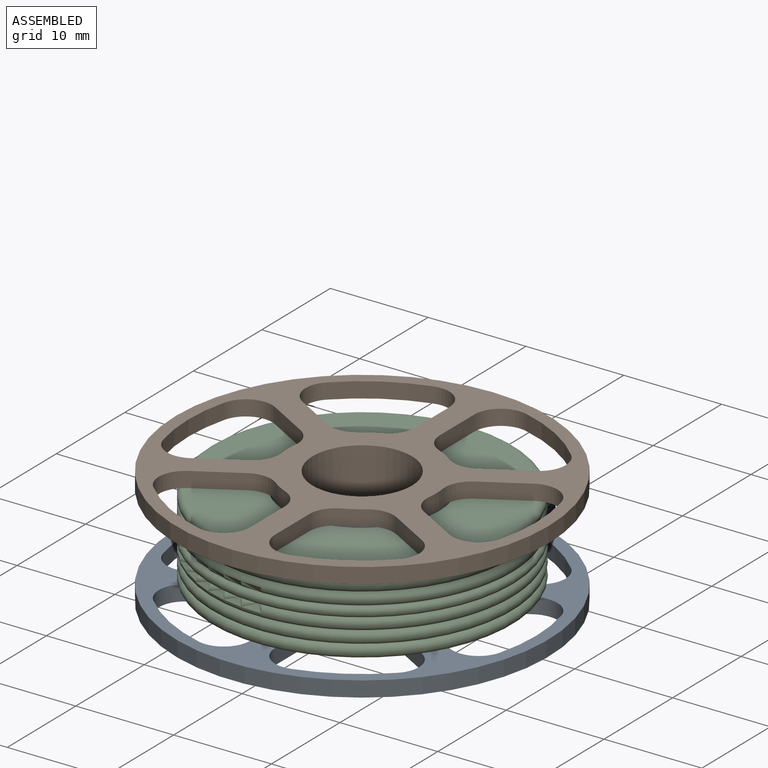
[diagram: assembled view]
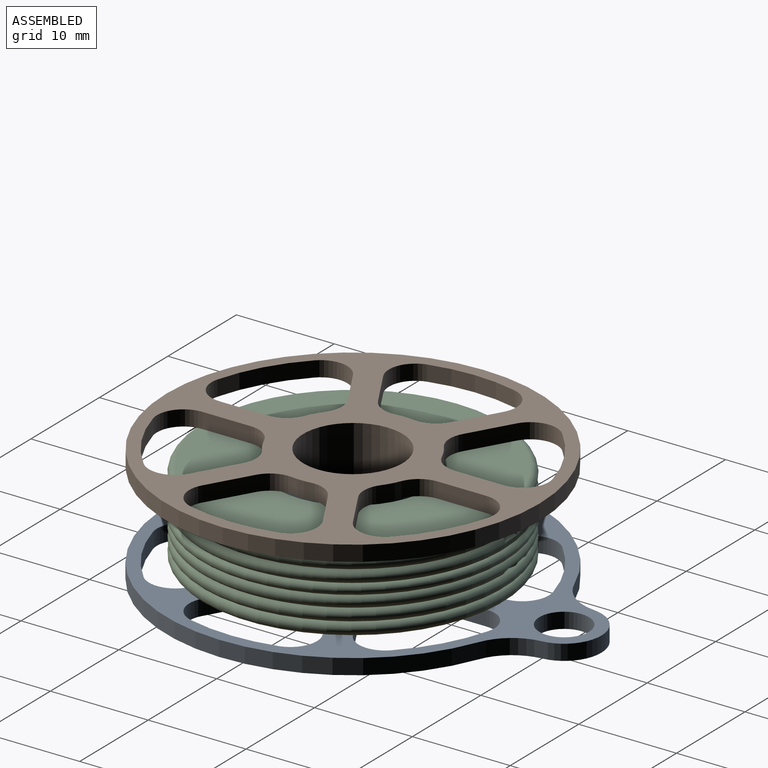
[diagram: assembled view, second angle]
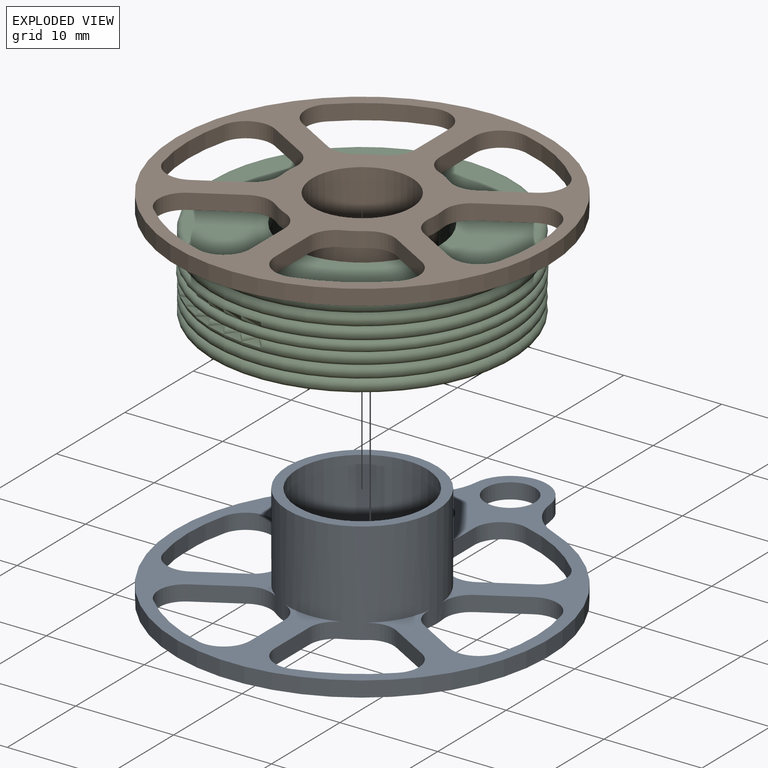
[diagram: exploded view]
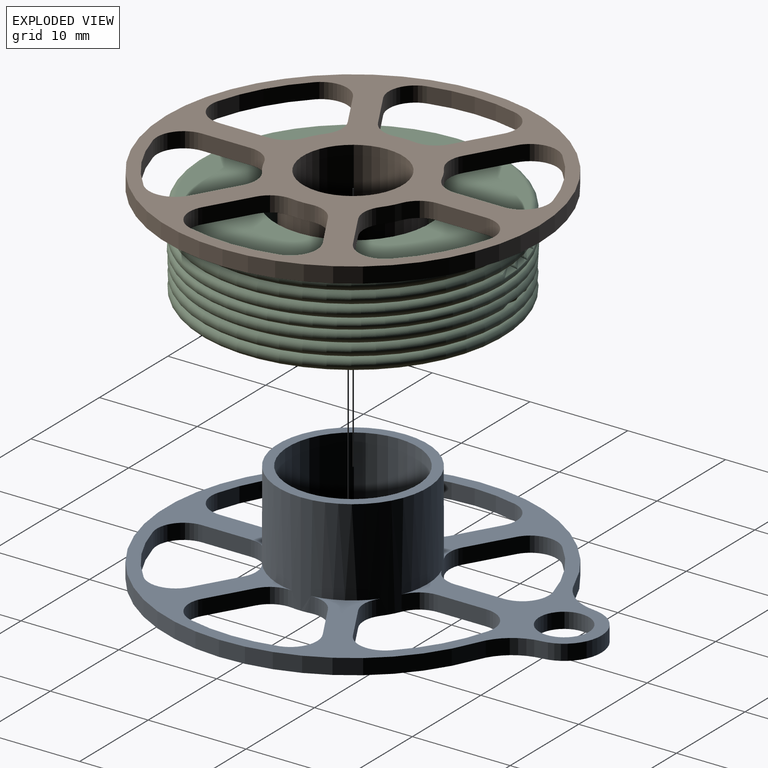
[diagram: exploded view, second angle]
ASSEMBLY  parts=3 mates=2
PART A: 54 faces, bbox 38.1x44.5x10.5 mm
  f0: cylinder r=5.08mm len=10.16mm, axis (0,0,1), area 42.6mm2, adj f2,f52
  f1: plane 44.45x38.1mm, normal (0,0,1), area 367.8mm2, adj f3,f4,f5,f6,f7,f8,f9,f10
  f2: plane 44.45x38.1mm, normal (0,0,-1), area 469.2mm2, adj f0,f3,f4,f5,f6,f7,f8,f9
  f3: cylinder r=3.81mm len=7.58mm, axis (0,0,-1), area 17.8mm2, adj f1,f2,f50,f51
  f4: cylinder r=2.54mm len=5.08mm, axis (0,0,-1), area 25.3mm2, adj f1,f2
  f5: cylinder r=19.05mm len=38.1mm, axis (0,0,-1), area 167.3mm2, adj f1,f2,f50,f51
  f6: plane 4.99x1.59mm, normal (-1,0,0), area 7.9mm2, adj f1,f2,f45,f48
  f7: cylinder r=17.78mm len=7.79mm, axis (0,0,1), area 14.4mm2, adj f1,f2,f47,f48
  f8: plane 4.32x2.5mm, normal (0.5,0.87,0), area 7.9mm2, adj f1,f2,f46,f47
  f9: plane 4.32x2.5mm, normal (0.5,-0.87,0), area 7.9mm2, adj f1,f2,f31,f32
  f10: cylinder r=17.78mm len=7.79mm, axis (0,0,1), area 14.4mm2, adj f1,f2,f30,f31
  f11: plane 4.99x1.59mm, normal (-1,0,0), area 7.9mm2, adj f1,f2,f29,f30
  f12: plane 4.32x2.5mm, normal (-0.5,-0.87,0), area 7.9mm2, adj f1,f2,f27,f28
  f13: cylinder r=17.78mm len=9mm, axis (0,0,1), area 14.4mm2, adj f1,f2,f26,f27
  f14: plane 4.32x2.5mm, normal (-0.5,0.87,0), area 7.9mm2, adj f1,f2,f25,f26
  f15: plane 4.32x2.5mm, normal (-0.5,0.87,0), area 7.9mm2, adj f1,f2,f41,f42
  f16: cylinder r=17.78mm len=7.79mm, axis (0,0,1), area 14.4mm2, adj f1,f2,f42,f43
  f17: plane 4.99x1.59mm, normal (1,0,0), area 7.9mm2, adj f1,f2,f43,f44
  f18: plane 4.99x1.59mm, normal (1,0,0), area 7.9mm2, adj f1,f2,f35,f36
  f19: cylinder r=17.78mm len=7.79mm, axis (0,0,1), area 14.4mm2, adj f1,f2,f34,f35
  f20: plane 4.32x2.5mm, normal (-0.5,-0.87,0), area 7.9mm2, adj f1,f2,f33,f34
  f21: cylinder r=7.62mm len=15.24mm, axis (0,0,1), area 444.2mm2, adj f1,f2,f25,f28,f29,f32,f33,f36
  f22: plane 4.32x2.5mm, normal (0.5,0.87,0), area 7.9mm2, adj f1,f2,f39,f40
  f23: cylinder r=17.78mm len=9mm, axis (0,0,1), area 14.4mm2, adj f1,f2,f38,f39
  f24: plane 4.32x2.5mm, normal (0.5,-0.87,0), area 7.9mm2, adj f1,f2,f37,f38
  f25: cylinder r=2.72mm len=2.7mm, axis (0,0,1), area 5.1mm2, adj f1,f2,f14,f21
  f26: cylinder r=2.72mm len=3.99mm, axis (0,0,1), area 7.9mm2, adj f1,f2,f13,f14
  f27: cylinder r=2.72mm len=3.99mm, axis (0,0,1), area 7.9mm2, adj f1,f2,f12,f13
  f28: cylinder r=2.72mm len=2.7mm, axis (0,0,1), area 5.1mm2, adj f1,f2,f12,f21
  f29: cylinder r=2.72mm len=2.51mm, axis (0,0,1), area 5.1mm2, adj f1,f2,f11,f21
  f30: cylinder r=2.72mm len=3.43mm, axis (0,0,1), area 7.9mm2, adj f1,f2,f10,f11
  f31: cylinder r=2.72mm len=4.28mm, axis (0,0,1), area 7.9mm2, adj f1,f2,f9,f10
  f32: cylinder r=2.72mm len=3mm, axis (0,0,1), area 5.1mm2, adj f1,f2,f9,f21
  f33: cylinder r=2.72mm len=3mm, axis (0,0,1), area 5.1mm2, adj f1,f2,f20,f21
  f34: cylinder r=2.72mm len=4.28mm, axis (0,0,1), area 7.9mm2, adj f1,f2,f19,f20
  f35: cylinder r=2.72mm len=3.43mm, axis (0,0,1), area 7.9mm2, adj f1,f2,f18,f19
  f36: cylinder r=2.72mm len=2.51mm, axis (0,0,1), area 5.1mm2, adj f1,f2,f18,f21
  f37: cylinder r=2.72mm len=2.7mm, axis (0,0,1), area 5.1mm2, adj f1,f2,f21,f24
  f38: cylinder r=2.72mm len=3.99mm, axis (0,0,1), area 7.9mm2, adj f1,f2,f23,f24
  f39: cylinder r=2.72mm len=3.99mm, axis (0,0,1), area 7.9mm2, adj f1,f2,f22,f23
  f40: cylinder r=2.72mm len=2.7mm, axis (0,0,1), area 5.1mm2, adj f1,f2,f21,f22
  f41: cylinder r=2.72mm len=3mm, axis (0,0,1), area 5.1mm2, adj f1,f2,f15,f21
  f42: cylinder r=2.72mm len=4.28mm, axis (0,0,1), area 7.9mm2, adj f1,f2,f15,f16
  f43: cylinder r=2.72mm len=3.43mm, axis (0,0,1), area 7.9mm2, adj f1,f2,f16,f17
  f44: cylinder r=2.72mm len=2.51mm, axis (0,0,1), area 5.1mm2, adj f1,f2,f17,f21
  f45: cylinder r=2.72mm len=2.51mm, axis (0,0,1), area 5.1mm2, adj f1,f2,f6,f21
  f46: cylinder r=2.72mm len=3mm, axis (0,0,1), area 5.1mm2, adj f1,f2,f8,f21
  f47: cylinder r=2.72mm len=4.28mm, axis (0,0,1), area 7.9mm2, adj f1,f2,f7,f8
  f48: cylinder r=2.72mm len=3.43mm, axis (0,0,1), area 7.9mm2, adj f1,f2,f6,f7
  f49: plane 15.24x15.24mm, normal (0,0,1), area 45.4mm2, adj f21,f53
  f50: cylinder r=5.08mm len=4.24mm, axis (0,0,1), area 8.9mm2, adj f1,f2,f3,f5
  f51: cylinder r=5.08mm len=4.24mm, axis (0,0,1), area 8.9mm2, adj f1,f2,f3,f5
  f52: plane 13.21x13.21mm, normal (0,0,1), area 55.9mm2, adj f0,f53
  f53: cylinder r=6.6mm len=13.21mm, axis (0,0,1), area 379.4mm2, adj f49,f52
PART B: 54 faces, bbox 38.1x38.1x10.5 mm
  f0: plane 38.1x38.1mm, normal (0,0,1), area 396mm2, adj f2,f3,f4,f5,f6,f7,f8,f9
  f1: plane 38.1x38.1mm, normal (0,0,-1), area 441.6mm2, adj f2,f3,f4,f5,f6,f7,f8,f9
  f2: cylinder r=19.05mm len=38.1mm, axis (0,0,-1), area 190mm2, adj f0,f1
  f3: plane 4.99x1.59mm, normal (-1,0,0), area 7.9mm2, adj f0,f1,f48,f51
  f4: cylinder r=17.78mm len=7.79mm, axis (0,0,1), area 14.4mm2, adj f0,f1,f50,f51
  f5: plane 4.32x2.5mm, normal (0.5,0.87,0), area 7.9mm2, adj f0,f1,f49,f50
  f6: cylinder r=7.62mm len=1.68mm, axis (0,0,1), area 3.1mm2, adj f0,f1,f48,f49
  f7: cylinder r=7.62mm len=1.68mm, axis (0,0,1), area 3.1mm2, adj f0,f1,f32,f35
  f8: plane 4.32x2.5mm, normal (0.5,-0.87,0), area 7.9mm2, adj f0,f1,f34,f35
  f9: cylinder r=17.78mm len=7.79mm, axis (0,0,1), area 14.4mm2, adj f0,f1,f33,f34
  f10: plane 4.99x1.59mm, normal (-1,0,0), area 7.9mm2, adj f0,f1,f32,f33
  f11: cylinder r=7.62mm len=1.94mm, axis (0,0,1), area 3.1mm2, adj f0,f1,f28,f31
  f12: plane 4.32x2.5mm, normal (-0.5,-0.87,0), area 7.9mm2, adj f0,f1,f30,f31
  f13: cylinder r=17.78mm len=9mm, axis (0,0,1), area 14.4mm2, adj f0,f1,f29,f30
  f14: plane 4.32x2.5mm, normal (-0.5,0.87,0), area 7.9mm2, adj f0,f1,f28,f29
  f15: cylinder r=5.08mm len=10.48mm, axis (0,0,1), area 334.4mm2, adj f1,f53
  f16: cylinder r=7.62mm len=1.68mm, axis (0,0,1), area 3.1mm2, adj f0,f1,f44,f47
  f17: plane 4.32x2.5mm, normal (-0.5,0.87,0), area 7.9mm2, adj f0,f1,f44,f45
  f18: cylinder r=17.78mm len=7.79mm, axis (0,0,1), area 14.4mm2, adj f0,f1,f45,f46
  f19: plane 4.99x1.59mm, normal (1,0,0), area 7.9mm2, adj f0,f1,f46,f47
  f20: cylinder r=7.62mm len=1.68mm, axis (0,0,1), area 3.1mm2, adj f0,f1,f36,f39
  f21: plane 4.99x1.59mm, normal (1,0,0), area 7.9mm2, adj f0,f1,f38,f39
  f22: cylinder r=17.78mm len=7.79mm, axis (0,0,1), area 14.4mm2, adj f0,f1,f37,f38
  f23: plane 4.32x2.5mm, normal (-0.5,-0.87,0), area 7.9mm2, adj f0,f1,f36,f37
  f24: cylinder r=7.62mm len=1.94mm, axis (0,0,1), area 3.1mm2, adj f0,f1,f40,f43
  f25: plane 4.32x2.5mm, normal (0.5,0.87,0), area 7.9mm2, adj f0,f1,f42,f43
  f26: cylinder r=17.78mm len=9mm, axis (0,0,1), area 14.4mm2, adj f0,f1,f41,f42
  f27: plane 4.32x2.5mm, normal (0.5,-0.87,0), area 7.9mm2, adj f0,f1,f40,f41
  f28: cylinder r=2.72mm len=2.7mm, axis (0,0,1), area 5.1mm2, adj f0,f1,f11,f14
  f29: cylinder r=2.72mm len=3.99mm, axis (0,0,1), area 7.9mm2, adj f0,f1,f13,f14
  f30: cylinder r=2.72mm len=3.99mm, axis (0,0,1), area 7.9mm2, adj f0,f1,f12,f13
  f31: cylinder r=2.72mm len=2.7mm, axis (0,0,1), area 5.1mm2, adj f0,f1,f11,f12
  f32: cylinder r=2.72mm len=2.51mm, axis (0,0,1), area 5.1mm2, adj f0,f1,f7,f10
  f33: cylinder r=2.72mm len=3.43mm, axis (0,0,1), area 7.9mm2, adj f0,f1,f9,f10
  f34: cylinder r=2.72mm len=4.28mm, axis (0,0,1), area 7.9mm2, adj f0,f1,f8,f9
  f35: cylinder r=2.72mm len=3mm, axis (0,0,1), area 5.1mm2, adj f0,f1,f7,f8
  f36: cylinder r=2.72mm len=3mm, axis (0,0,1), area 5.1mm2, adj f0,f1,f20,f23
  f37: cylinder r=2.72mm len=4.28mm, axis (0,0,1), area 7.9mm2, adj f0,f1,f22,f23
  f38: cylinder r=2.72mm len=3.43mm, axis (0,0,1), area 7.9mm2, adj f0,f1,f21,f22
  f39: cylinder r=2.72mm len=2.51mm, axis (0,0,1), area 5.1mm2, adj f0,f1,f20,f21
  f40: cylinder r=2.72mm len=2.7mm, axis (0,0,1), area 5.1mm2, adj f0,f1,f24,f27
  f41: cylinder r=2.72mm len=3.99mm, axis (0,0,1), area 7.9mm2, adj f0,f1,f26,f27
  f42: cylinder r=2.72mm len=3.99mm, axis (0,0,1), area 7.9mm2, adj f0,f1,f25,f26
  f43: cylinder r=2.72mm len=2.7mm, axis (0,0,1), area 5.1mm2, adj f0,f1,f24,f25
  f44: cylinder r=2.72mm len=3mm, axis (0,0,1), area 5.1mm2, adj f0,f1,f16,f17
  f45: cylinder r=2.72mm len=4.28mm, axis (0,0,1), area 7.9mm2, adj f0,f1,f17,f18
  f46: cylinder r=2.72mm len=3.43mm, axis (0,0,1), area 7.9mm2, adj f0,f1,f18,f19
  f47: cylinder r=2.72mm len=2.51mm, axis (0,0,1), area 5.1mm2, adj f0,f1,f16,f19
  f48: cylinder r=2.72mm len=2.51mm, axis (0,0,1), area 5.1mm2, adj f0,f1,f3,f6
  f49: cylinder r=2.72mm len=3mm, axis (0,0,1), area 5.1mm2, adj f0,f1,f5,f6
  f50: cylinder r=2.72mm len=4.28mm, axis (0,0,1), area 7.9mm2, adj f0,f1,f4,f5
  f51: cylinder r=2.72mm len=3.43mm, axis (0,0,1), area 7.9mm2, adj f0,f1,f3,f4
  f52: cylinder r=6.35mm len=12.7mm, axis (0,0,-1), area 354.7mm2, adj f0,f53
  f53: plane 12.7x12.7mm, normal (0,0,1), area 45.6mm2, adj f15,f52
PART C: 14 faces, bbox 33.8x33.8x8.6 mm
  f0: plane 30.46x30.46mm, normal (0,0,1), area 30.8mm2, adj f1,f13
  f1: torus R=15.07mm, axis (0,0,-1), area 16.9mm2, adj f0,f2
  f2: torus R=14.91mm, axis (0,0,-1), area 175mm2, adj f1,f3
  f3: torus R=14.91mm, axis (0,0,-1), area 191.9mm2, adj f2,f4
  f4: torus R=14.91mm, axis (0,0,-1), area 191.9mm2, adj f3,f5
  f5: plane 29.81x29.81mm, normal (0,0,1), area 503.2mm2, adj f4,f6
  f6: cylinder r=7.87mm len=15.75mm, axis (0,0,-1), area 427.3mm2, adj f5,f7
  f7: plane 29.81x29.81mm, normal (0,0,-1), area 503.2mm2, adj f6,f8
  f8: torus R=14.91mm, axis (0,0,-1), area 191.9mm2, adj f7,f9
  f9: torus R=14.91mm, axis (0,0,-1), area 191.9mm2, adj f8,f10
  f10: torus R=14.91mm, axis (0,0,-1), area 175mm2, adj f9,f11
  f11: torus R=15.07mm, axis (0,0,-1), area 16.9mm2, adj f10,f12
  f12: plane 30.46x30.46mm, normal (0,0,-1), area 30.8mm2, adj f11,f13
  f13: torus R=15.07mm, axis (0,0,-1), area 130.8mm2, adj f0,f12
PLACE A t=(-21.12,9.14,24.65)mm
PLACE B rot(axis=(0,1,0),180deg) t=(-21.12,9.14,36.72)mm
PLACE C t=(-21.12,9.14,26.49)mm
MATE revolute C.f1 <-> A.f21  axis (0,0,-1) through (-21.12,9.14,35.13)mm
MATE revolute B.f52 <-> A.f53  axis (0,0,1) through (-21.12,9.14,35.13)mm
